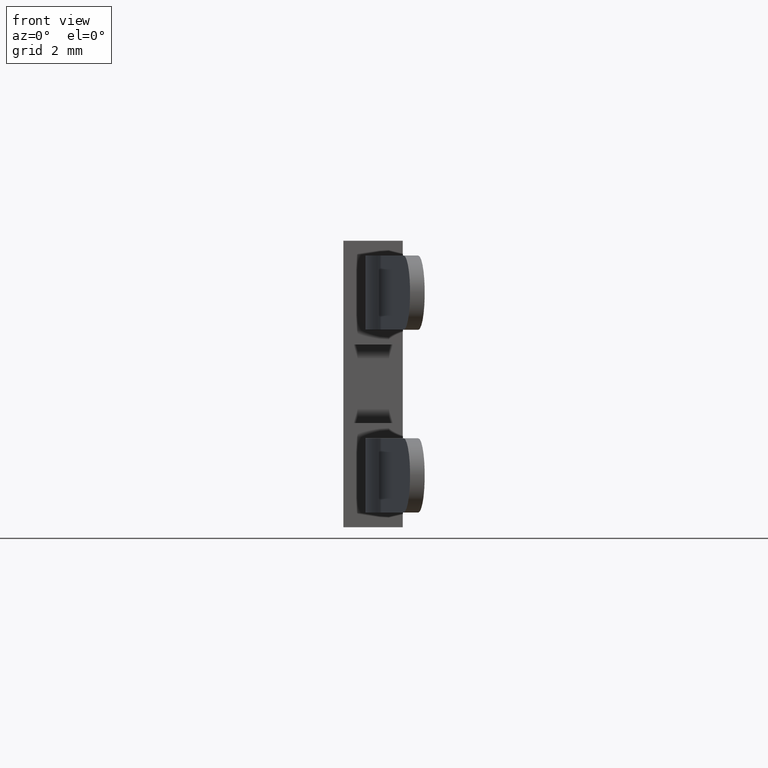
[diagram: clean part render]
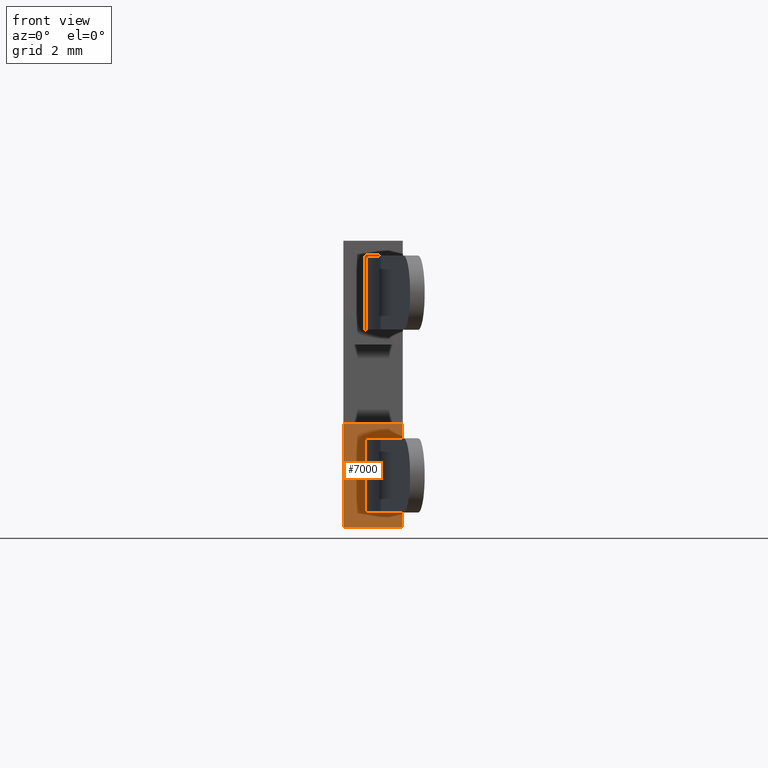
[diagram: same view with one face highlighted and labeled with its STEP entity id]
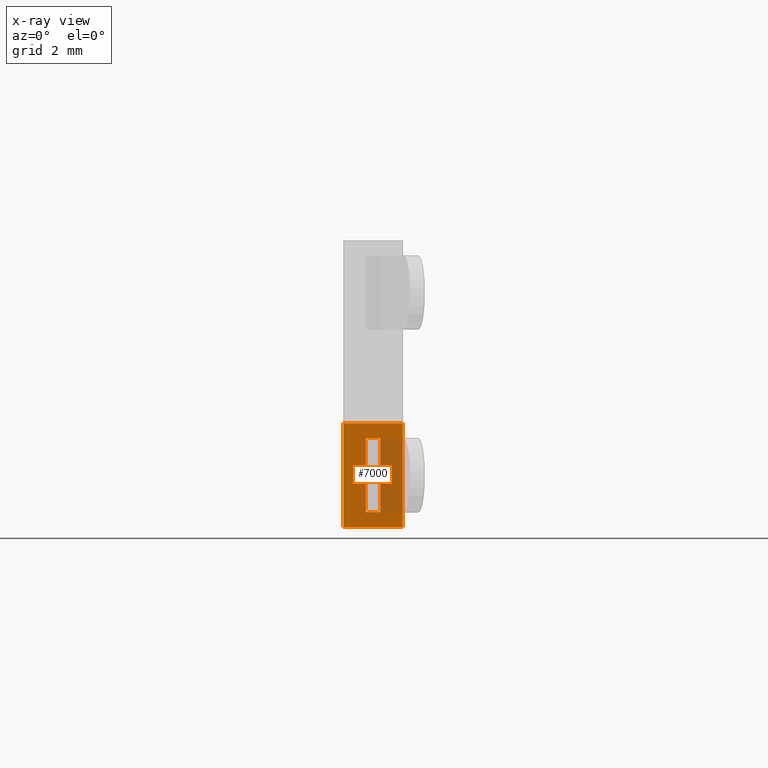
[diagram: x-ray of the same camera — body ghosted, the highlighted face saturated]
A machine part, front view. The second image highlights one B-rep face of the part: STEP entity #7000.
The next image is the same camera in x-ray: the body ghosted, the highlighted face saturated — about 33% of this face is hidden behind the body in this view.
In plain terms, the highlighted planar face has unit normal (0, -1, 0).
Its self-contained STEP definition (entity closure, byte-faithful):
#1080=CARTESIAN_POINT('',(-20.4551720133759,-9.04580621180248,-1.25));
#1090=VERTEX_POINT('',#1080);
#1240=CARTESIAN_POINT('',(-20.4551720133759,-9.04580621180248,0.75));
#1250=VERTEX_POINT('',#1240);
#1280=CARTESIAN_POINT('',(-20.4551720133759,-9.04580621180248,0.75));
#1290=DIRECTION('',(0.,0.,1.));
#1300=VECTOR('',#1290,1.);
#1310=LINE('',#1280,#1300);
#1320=EDGE_CURVE('',#1090,#1250,#1310,.T.);
#1640=CARTESIAN_POINT('',(-16.9551720133759,-9.04580621180248,0.75));
#1650=VERTEX_POINT('',#1640);
#1680=CARTESIAN_POINT('',(0.,-9.04580621180248,0.75));
#1690=DIRECTION('',(1.,0.,0.));
#1700=VECTOR('',#1690,1.);
#1710=LINE('',#1680,#1700);
#1720=EDGE_CURVE('',#1250,#1650,#1710,.T.);
#2650=CARTESIAN_POINT('',(0.,-9.04580621180248,-1.25));
#2660=DIRECTION('',(1.,0.,0.));
#2670=VECTOR('',#2660,1.);
#2680=LINE('',#2650,#2670);
#2690=CARTESIAN_POINT('',(-16.9551720133759,-9.04580621180248,-1.25));
#2700=VERTEX_POINT('',#2690);
#2710=EDGE_CURVE('',#1090,#2700,#2680,.T.);
#3300=CARTESIAN_POINT('',(-16.9551720133759,-9.04580621180248,0.75));
#3310=DIRECTION('',(0.,0.,1.));
#3320=VECTOR('',#3310,1.);
#3330=LINE('',#3300,#3320);
#3340=EDGE_CURVE('',#2700,#1650,#3330,.T.);
#5840=CARTESIAN_POINT('',(-17.4551720133737,-9.04580621180248,
-0.502166000000009));
#5850=VERTEX_POINT('',#5840);
#6440=CARTESIAN_POINT('',(-17.4551720133737,-9.04580621180248,
-0.00216599999981659));
#6450=VERTEX_POINT('',#6440);
#6480=CARTESIAN_POINT('',(-17.4551720133737,-9.04580621180248,0.75));
#6490=DIRECTION('',(0.,0.,1.));
#6500=VECTOR('',#6490,1.);
#6510=LINE('',#6480,#6500);
#6520=EDGE_CURVE('',#5850,#6450,#6510,.T.);
#6640=CARTESIAN_POINT('',(-20.4551720133759,-9.04580621180248,0.75));
#6650=DIRECTION('',(-0.,-1.,-0.));
#6660=DIRECTION('',(-1.,0.,0.));
#6670=AXIS2_PLACEMENT_3D('',#6640,#6650,#6660);
#6680=PLANE('',#6670);
#6690=ORIENTED_EDGE('',*,*,#6520,.F.);
#6700=CARTESIAN_POINT('',(0.,-9.04580621180248,-0.00216599999981659));
#6710=DIRECTION('',(1.,0.,-2.46600550871962E-28));
#6720=VECTOR('',#6710,1.);
#6730=LINE('',#6700,#6720);
#6740=CARTESIAN_POINT('',(-19.9551720133737,-9.04580621180248,
-0.00216599999981659));
#6750=VERTEX_POINT('',#6740);
#6760=EDGE_CURVE('',#6750,#6450,#6730,.T.);
#6770=ORIENTED_EDGE('',*,*,#6760,.T.);
#6780=CARTESIAN_POINT('',(-19.9551720133737,-9.04580621180248,0.75));
#6790=DIRECTION('',(0.,0.,-1.));
#6800=VECTOR('',#6790,1.);
#6810=LINE('',#6780,#6800);
#6820=CARTESIAN_POINT('',(-19.9551720133737,-9.04580621180248,
-0.502166000000009));
#6830=VERTEX_POINT('',#6820);
#6840=EDGE_CURVE('',#6750,#6830,#6810,.T.);
#6850=ORIENTED_EDGE('',*,*,#6840,.F.);
#6860=CARTESIAN_POINT('',(0.,-9.04580621180248,-0.502166000000009));
#6870=DIRECTION('',(-1.,0.,6.03872056969976E-44));
#6880=VECTOR('',#6870,1.);
#6890=LINE('',#6860,#6880);
#6900=EDGE_CURVE('',#5850,#6830,#6890,.T.);
#6910=ORIENTED_EDGE('',*,*,#6900,.T.);
#6920=EDGE_LOOP('',(#6910,#6850,#6770,#6690));
#6930=FACE_BOUND('',#6920,.T.);
#6940=ORIENTED_EDGE('',*,*,#1320,.F.);
#6950=ORIENTED_EDGE('',*,*,#1720,.F.);
#6960=ORIENTED_EDGE('',*,*,#3340,.T.);
#6970=ORIENTED_EDGE('',*,*,#2710,.T.);
#6980=EDGE_LOOP('',(#6970,#6960,#6950,#6940));
#6990=FACE_OUTER_BOUND('',#6980,.T.);
#7000=ADVANCED_FACE('',(#6930,#6990),#6680,.T.);